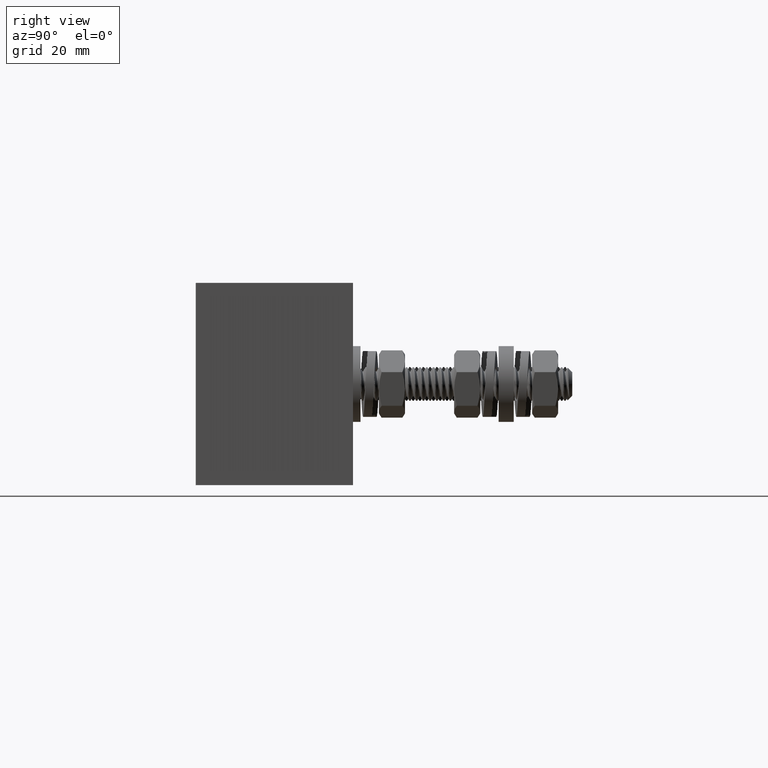
[diagram: clean part render]
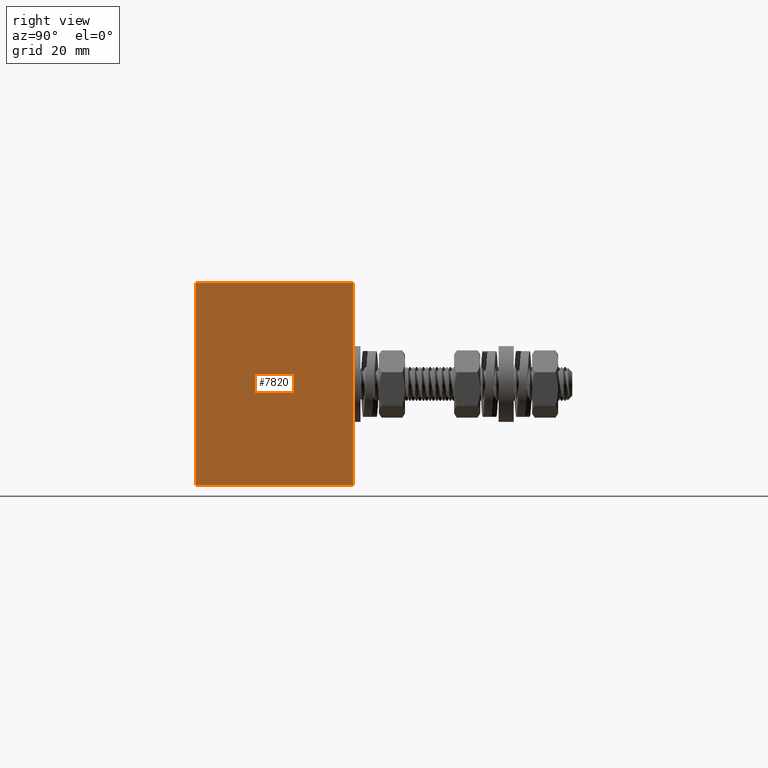
[diagram: same view with one face highlighted and labeled with its STEP entity id]
A machine part, right view. The second image highlights one B-rep face of the part: STEP entity #7820.
In plain terms, the highlighted planar face has unit normal (-0.9998, -0.0175, 0).
Its self-contained STEP definition (entity closure, byte-faithful):
#2080 = VERTEX_POINT ( 'NONE', #56674 ) ;
#3171 = CARTESIAN_POINT ( 'NONE',  ( 2.200000000000000200, 0.0000000000000000000, 0.7500000000000001100 ) ) ;
#4234 = VERTEX_POINT ( 'NONE', #34630 ) ;
#5444 = FACE_OUTER_BOUND ( 'NONE', #55119, .T. ) ;
#6604 = CARTESIAN_POINT ( 'NONE',  ( 2.179664849358631300, 1.165000000000000000, 0.7500000000000001100 ) ) ;
#7820 = ADVANCED_FACE ( 'NONE', ( #5444 ), #31957, .F. ) ;
#8040 = DIRECTION ( 'NONE',  ( 0.01745240643727952900, -0.9998476951563912700, 0.0000000000000000000 ) ) ;
#9544 = CARTESIAN_POINT ( 'NONE',  ( 2.200000000000000200, 0.0000000000000000000, -0.7500000000000001100 ) ) ;
#11505 = DIRECTION ( 'NONE',  ( -0.0000000000000000000, -0.0000000000000000000, -1.000000000000000000 ) ) ;
#14201 = ORIENTED_EDGE ( 'NONE', *, *, #50438, .T. ) ;
#14593 = CARTESIAN_POINT ( 'NONE',  ( 2.200000000000000200, 0.0000000000000000000, 0.7500000000000001100 ) ) ;
#19152 = EDGE_CURVE ( 'NONE', #4234, #44688, #61108, .T. ) ;
#20395 = LINE ( 'NONE', #30782, #31758 ) ;
#20695 = VERTEX_POINT ( 'NONE', #36867 ) ;
#22456 = ORIENTED_EDGE ( 'NONE', *, *, #26694, .F. ) ;
#23124 = EDGE_CURVE ( 'NONE', #2080, #44688, #46962, .T. ) ;
#26694 = EDGE_CURVE ( 'NONE', #20695, #2080, #20395, .T. ) ;
#28238 = AXIS2_PLACEMENT_3D ( 'NONE', #3171, #37044, #8040 ) ;
#29587 = DIRECTION ( 'NONE',  ( -0.0000000000000000000, -0.0000000000000000000, -1.000000000000000000 ) ) ;
#30782 = CARTESIAN_POINT ( 'NONE',  ( 2.200000000000000200, 0.0000000000000000000, 0.7500000000000001100 ) ) ;
#31758 = VECTOR ( 'NONE', #40568, 39.37007874015748100 ) ;
#31957 = PLANE ( 'NONE',  #28238 ) ;
#34630 = CARTESIAN_POINT ( 'NONE',  ( 2.200000000000000200, 0.0000000000000000000, -0.7500000000000001100 ) ) ;
#36867 = CARTESIAN_POINT ( 'NONE',  ( 2.200000000000000200, 0.0000000000000000000, 0.7500000000000001100 ) ) ;
#37044 = DIRECTION ( 'NONE',  ( -0.9998476951563913800, -0.01745240643727953200, 0.0000000000000000000 ) ) ;
#38033 = CARTESIAN_POINT ( 'NONE',  ( 2.179664849358631300, 1.165000000000000000, -0.7500000000000001100 ) ) ;
#38550 = DIRECTION ( 'NONE',  ( -0.01745240643727953200, 0.9998476951563912700, 0.0000000000000000000 ) ) ;
#40568 = DIRECTION ( 'NONE',  ( -0.01745240643727953200, 0.9998476951563912700, 0.0000000000000000000 ) ) ;
#40807 = ORIENTED_EDGE ( 'NONE', *, *, #19152, .T. ) ;
#44688 = VERTEX_POINT ( 'NONE', #38033 ) ;
#46062 = VECTOR ( 'NONE', #29587, 39.37007874015748100 ) ;
#46962 = LINE ( 'NONE', #6604, #59783 ) ;
#48320 = VECTOR ( 'NONE', #38550, 39.37007874015748100 ) ;
#50438 = EDGE_CURVE ( 'NONE', #20695, #4234, #58885, .T. ) ;
#55119 = EDGE_LOOP ( 'NONE', ( #40807, #62397, #22456, #14201 ) ) ;
#56674 = CARTESIAN_POINT ( 'NONE',  ( 2.179664849358631300, 1.165000000000000000, 0.7500000000000001100 ) ) ;
#58885 = LINE ( 'NONE', #14593, #46062 ) ;
#59783 = VECTOR ( 'NONE', #11505, 39.37007874015748100 ) ;
#61108 = LINE ( 'NONE', #9544, #48320 ) ;
#62397 = ORIENTED_EDGE ( 'NONE', *, *, #23124, .F. ) ;